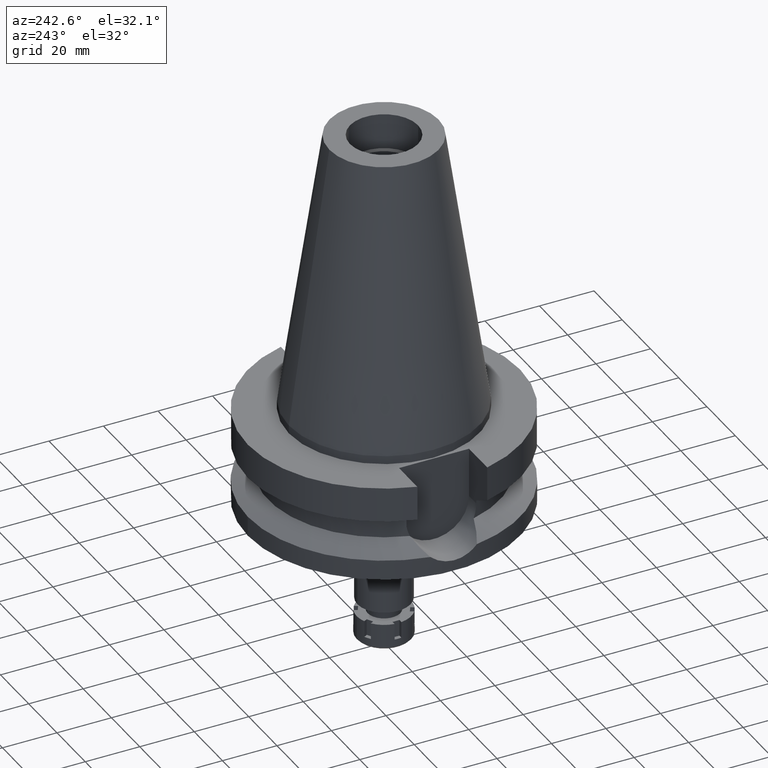
[diagram: clean part render]
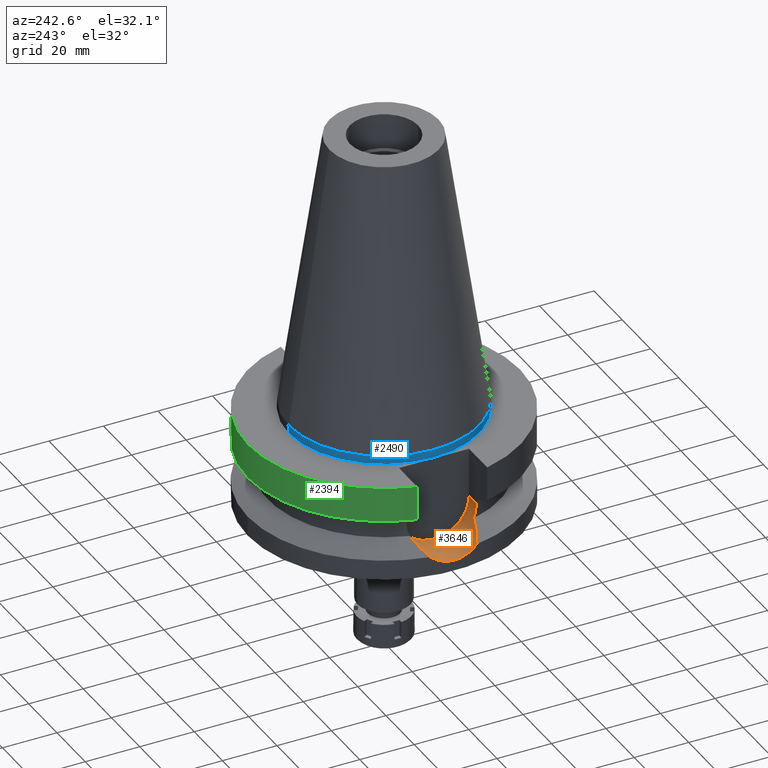
[diagram: same view with three faces highlighted in distinct colors, each labeled with its STEP entity id]
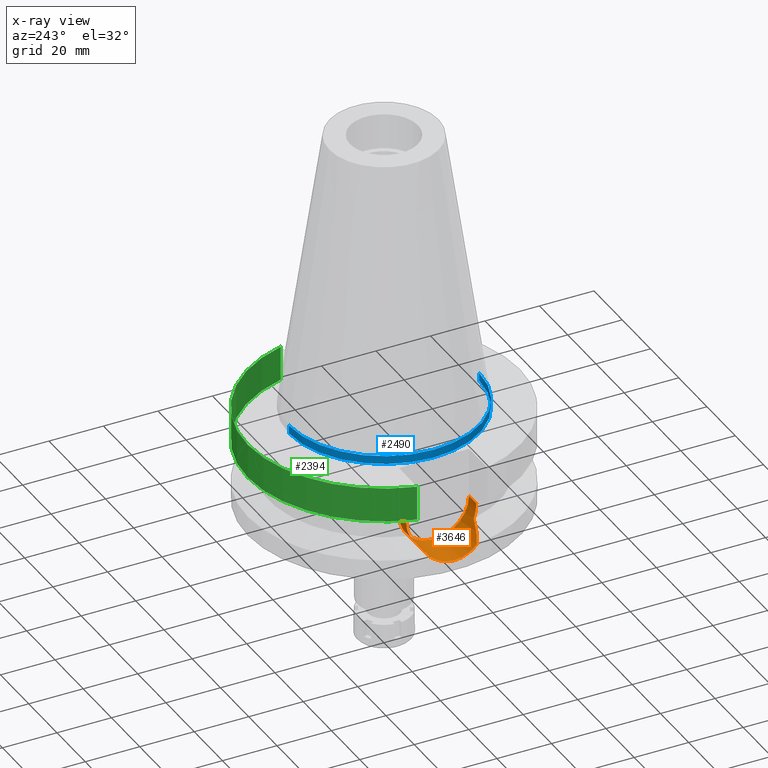
[diagram: x-ray of the same camera — body ghosted, the three highlighted faces saturated]
A machine part, auxiliary view with three faces highlighted in distinct colors.
The next image is the same camera in x-ray (body ghosted, the three faces saturated) — at least one of them is partly hidden behind the body in this view.
Their STEP definitions:

[orange] entity #3646 — the highlighted cylindrical surface (partial cylindrical patch) has radius 12.85 mm, axis along (-1, 0, 0).
#7 = ORIENTED_EDGE ( 'NONE', *, *, #560, .T. ) ;
#11 = CARTESIAN_POINT ( 'NONE',  ( -49.78024957252048921, 4.682602905365143897, -33.11659475759515914 ) ) ;
#47 = CARTESIAN_POINT ( 'NONE',  ( -49.55515418396026917, -6.654861456612751525, -32.14251385466569388 ) ) ;
#64 = CARTESIAN_POINT ( 'NONE',  ( -49.79691665736698525, -4.501773781372750527, -33.18568231504254840 ) ) ;
#84 = CARTESIAN_POINT ( 'NONE',  ( -49.61115140423147096, -6.223964729668114870, -32.39254390111983639 ) ) ;
#148 = CARTESIAN_POINT ( 'NONE',  ( -40.59544671389547688, 12.58032818125417052, -23.76890350620602987 ) ) ;
#150 = CARTESIAN_POINT ( 'NONE',  ( -45.28022631702651069, 10.40516266909225784, -28.69344492169560112 ) ) ;
#168 = CARTESIAN_POINT ( 'NONE',  ( -40.79434743164176780, -11.92110232362471223, -25.97065181136023071 ) ) ;
#200 = CARTESIAN_POINT ( 'NONE',  ( -48.08674290333145507, -9.197699470194816485, -30.13506513747411120 ) ) ;
#203 = CARTESIAN_POINT ( 'NONE',  ( -40.51083188481999287, -12.84999999999998366, -22.03308001794184179 ) ) ;
#212 = CARTESIAN_POINT ( 'NONE',  ( -35.39999999999999858, 12.84999999999999964, -21.14999999999999858 ) ) ;
#214 = CARTESIAN_POINT ( 'NONE',  ( -40.63719938804877074, -12.44499676301191826, -24.35261212848407908 ) ) ;
#230 = CARTESIAN_POINT ( 'NONE',  ( -45.65548656110691894, -10.26045505715678630, -28.88638470194267782 ) ) ;
#281 = CARTESIAN_POINT ( 'NONE',  ( -45.49443635848218292, -10.32217102536703557, -28.80354912394240685 ) ) ;
#297 = CARTESIAN_POINT ( 'NONE',  ( -49.37893249928544748, 7.861649084721365810, -31.32227597610346592 ) ) ;
#307 = CARTESIAN_POINT ( 'NONE',  ( -49.75846009006448156, -4.919875096651708191, -33.02628834701815919 ) ) ;
#325 = CARTESIAN_POINT ( 'NONE',  ( -49.55886472127197351, -6.627183405182607068, -32.15923396749315799 ) ) ;
#336 = CARTESIAN_POINT ( 'NONE',  ( -49.54916658599071866, 6.699295305335199124, -32.11552208864485181 ) ) ;
#345 = DIRECTION ( 'NONE',  ( 1.000000000000000000, 0.0000000000000000000, 0.0000000000000000000 ) ) ;
#349 = CARTESIAN_POINT ( 'NONE',  ( -49.97921232366403643, 1.472283131630176101, -33.92105330253033912 ) ) ;
#383 = VERTEX_POINT ( 'NONE', #2270 ) ;
#387 = CARTESIAN_POINT ( 'NONE',  ( -49.48034313897580461, -7.211008700865867205, -31.80506207765757054 ) ) ;
#427 = ORIENTED_EDGE ( 'NONE', *, *, #2213, .F. ) ;
#436 = CARTESIAN_POINT ( 'NONE',  ( -44.17998269318508164, 10.79320659599376064, -28.12725308174869809 ) ) ;
#486 = CARTESIAN_POINT ( 'NONE',  ( -48.69701432320685797, -8.880565581035746447, -30.44770058621088182 ) ) ;
#499 = CARTESIAN_POINT ( 'NONE',  ( -40.65435955981701710, 12.39001970624505411, -24.66361747048290098 ) ) ;
#509 = CARTESIAN_POINT ( 'NONE',  ( -44.02858050453298233, -10.87237400649603991, -28.04947220502536354 ) ) ;
#560 = EDGE_CURVE ( 'NONE', #923, #2223, #625, .T. ) ;
#562 = CARTESIAN_POINT ( 'NONE',  ( -49.32374122224086932, 8.203452260525248008, -31.05198044048908201 ) ) ;
#581 = CARTESIAN_POINT ( 'NONE',  ( -49.64903245710186042, 5.923660224752094194, -32.55987247467890455 ) ) ;
#591 = CARTESIAN_POINT ( 'NONE',  ( -49.98153239810303461, -1.536309943181190407, -33.93135900365250279 ) ) ;
#603 = ORIENTED_EDGE ( 'NONE', *, *, #1925, .T. ) ;
#613 = B_SPLINE_CURVE_WITH_KNOTS ( 'NONE', 3,
 ( #3041, #486, #200, #2687, #1337, #2400, #2115, #230, #281, #2258, #1368, #2190, #3380, #509, #3651, #1658 ),
 .UNSPECIFIED., .F., .F.,
 ( 4, 2, 2, 1, 1, 1, 1, 2, 2, 4 ),
 ( 0.0000000000000000000, 0.2499999999999930056, 0.3749999999999895084, 0.4374999999999872324, 0.4687499999999849010, 0.4843749999999835132, 0.4921874999999839018, 0.4960937499999851230, 0.4999999999999863443, 1.000000000000000000 ),
 .UNSPECIFIED. ) ;
#619 = ORIENTED_EDGE ( 'NONE', *, *, #1608, .T. ) ;
#625 = B_SPLINE_CURVE_WITH_KNOTS ( 'NONE', 3,
 ( #3120, #562, #297, #1984, #3173, #1724, #2835, #1142, #336, #2313, #1472, #2621, #2273, #3411, #581, #858, #3135, #1708, #2855, #11, #2289, #3428, #878, #3451, #2023, #1167, #2903, #349, #2647, #3476, #3442, #2341, #2359, #650, #925, #1484, #591, #1207, #2053, #3146, #1251, #1499, #2863, #64, #1992, #2665, #1734, #307, #2033, #3182, #1441, #84, #1779, #1460, #869, #325, #2608, #47, #890, #387, #1718, #3203 ),
 .UNSPECIFIED., .F., .F.,
 ( 4, 2, 2, 1, 1, 1, 1, 2, 2, 2, 2, 1, 1, 1, 2, 2, 2, 2, 1, 1, 1, 2, 2, 2, 2, 1, 1, 1, 1, 2, 2, 2, 2, 1, 1, 1, 1, 2, 2, 4 ),
 ( 0.0000000000000000000, 0.06249999999998098743, 0.09374999999997178646, 0.1093749999999669292, 0.1171874999999645839, 0.1210937499999636818, 0.1230468749999632239, 0.1240234374999630573, 0.1249999999999629186, 0.1874999999999583389, 0.2187499999999560352, 0.2343749999999547862, 0.2421874999999540090, 0.2460937499999536204, 0.2480468749999534539, 0.2499999999999533151, 0.3749999999999587552, 0.4374999999999614753, 0.4687499999999628075, 0.4843749999999634737, 0.4921874999999637512, 0.4960937499999638622, 0.4999999999999640288, 0.6249999999999688027, 0.6874999999999712452, 0.7187499999999725775, 0.7343749999999729106, 0.7421874999999731326, 0.7460937499999731326, 0.7480468749999730216, 0.7499999999999730216, 0.8124999999999784617, 0.8437499999999811262, 0.8593749999999822364, 0.8671874999999827915, 0.8710937499999830136, 0.8730468749999831246, 0.8740234374999831246, 0.8749999999999831246, 1.000000000000000000 ),
 .UNSPECIFIED. ) ;
#650 = CARTESIAN_POINT ( 'NONE',  ( -49.99991319832171399, 0.01136593545205097540, -34.00001610124989071 ) ) ;
#704 = B_SPLINE_CURVE_WITH_KNOTS ( 'NONE', 3,
 ( #1059, #2192, #2157, #782, #1562, #2705, #3315, #1894, #746, #148, #1659, #499, #1369, #1076 ),
 .UNSPECIFIED., .F., .F.,
 ( 4, 2, 2, 1, 1, 2, 2, 4 ),
 ( 0.0000000000000000000, 0.2500000000000000000, 0.3750000000000008327, 0.4375000000000012212, 0.4687500000000014988, 0.4843750000000016653, 0.5000000000000017764, 1.000000000000000000 ),
 .UNSPECIFIED. ) ;
#708 = CARTESIAN_POINT ( 'NONE',  ( -49.26250064874000145, -8.556052234130000045, -30.73730776426999967 ) ) ;
#746 = CARTESIAN_POINT ( 'NONE',  ( -40.59188398425018818, 12.59182459259059073, -23.71305796897122775 ) ) ;
#748 = CARTESIAN_POINT ( 'NONE',  ( -40.62482961095667378, -12.48525133053585989, -24.19329755006799232 ) ) ;
#782 = CARTESIAN_POINT ( 'NONE',  ( -40.54025313608426728, 12.75731810731581461, -22.70684014861738120 ) ) ;
#783 = CARTESIAN_POINT ( 'NONE',  ( -40.74530522851353709, -12.08734613714420547, -25.53455770065794539 ) ) ;
#817 = EDGE_LOOP ( 'NONE', ( #2588, #427, #603, #3164, #1162, #619, #7, #3518 ) ) ;
#841 = EDGE_CURVE ( 'NONE', #2223, #383, #613, .T. ) ;
#858 = CARTESIAN_POINT ( 'NONE',  ( -49.70819606407139446, 5.395925772571422030, -32.81381563398468160 ) ) ;
#869 = CARTESIAN_POINT ( 'NONE',  ( -49.56403511907249992, -6.588443188291877028, -32.18250114695492670 ) ) ;
#878 = CARTESIAN_POINT ( 'NONE',  ( -49.79207077459503950, 4.554957529583892217, -33.16561446373125221 ) ) ;
#890 = CARTESIAN_POINT ( 'NONE',  ( -49.55423850347690973, -6.661675813695715043, -32.13838478411036448 ) ) ;
#923 = VERTEX_POINT ( 'NONE', #2526 ) ;
#925 = CARTESIAN_POINT ( 'NONE',  ( -49.99991212798492057, -0.01359305581810668628, -34.00001368996090889 ) ) ;
#1019 = VERTEX_POINT ( 'NONE', #3413 ) ;
#1025 = CYLINDRICAL_SURFACE ( 'NONE', #2833, 12.85000000000000320 ) ;
#1059 = CARTESIAN_POINT ( 'NONE',  ( -40.51083188481999997, 12.84999999999999964, -21.14999999999999858 ) ) ;
#1060 = CARTESIAN_POINT ( 'NONE',  ( -40.68244601107635106, -12.29666625011163994, -24.88710380518771359 ) ) ;
#1074 = CARTESIAN_POINT ( 'NONE',  ( -35.39999999999999858, -12.84999999999999964, -21.14999999999999858 ) ) ;
#1076 = CARTESIAN_POINT ( 'NONE',  ( -40.85052569294000335, 11.72538061688000077, -26.40718074535000426 ) ) ;
#1142 = CARTESIAN_POINT ( 'NONE',  ( -49.54081522926169612, 6.760831091631374967, -32.07779346169777313 ) ) ;
#1162 = ORIENTED_EDGE ( 'NONE', *, *, #3338, .T. ) ;
#1167 = CARTESIAN_POINT ( 'NONE',  ( -49.91494156087060219, 3.003678811150799710, -33.66822178003757671 ) ) ;
#1173 = EDGE_CURVE ( 'NONE', #1019, #3355, #1642, .T. ) ;
#1207 = CARTESIAN_POINT ( 'NONE',  ( -49.92889851897064801, -2.680302570110720595, -33.72333287907783017 ) ) ;
#1251 = CARTESIAN_POINT ( 'NONE',  ( -49.84651032207553101, -3.920896850951880452, -33.39006912574158292 ) ) ;
#1313 = CARTESIAN_POINT ( 'NONE',  ( -40.85052569294000335, -11.72538061688000077, -26.40718074535000426 ) ) ;
#1337 = CARTESIAN_POINT ( 'NONE',  ( -46.76543360131057625, -9.806707780502058824, -29.45691703803068862 ) ) ;
#1357 = B_SPLINE_CURVE_WITH_KNOTS ( 'NONE', 3,
 ( #1313, #168, #783, #1060, #3301, #214, #748, #1565, #1896, #2763, #1878, #3317, #203, #2480 ),
 .UNSPECIFIED., .F., .F.,
 ( 4, 2, 2, 1, 1, 2, 2, 4 ),
 ( 0.0000000000000000000, 0.2499999999999899525, 0.3749999999999840683, 0.4374999999999820144, 0.4687499999999810152, 0.4843749999999805156, 0.4999999999999800160, 1.000000000000000000 ),
 .UNSPECIFIED. ) ;
#1368 = CARTESIAN_POINT ( 'NONE',  ( -45.37864606306082749, -10.36599804605942232, -28.74398704917282288 ) ) ;
#1369 = CARTESIAN_POINT ( 'NONE',  ( -40.73816957792608662, 12.11682261037261377, -25.53412604446632628 ) ) ;
#1404 = DIRECTION ( 'NONE',  ( 1.000000000000000000, 3.301887120261000215E-14, -2.711023109266999928E-14 ) ) ;
#1441 = CARTESIAN_POINT ( 'NONE',  ( -49.64375670555803310, -5.959977035439905535, -32.53601313173613363 ) ) ;
#1453 = AXIS2_PLACEMENT_3D ( 'NONE', #1777, #345, #3226 ) ;
#1460 = CARTESIAN_POINT ( 'NONE',  ( -49.57428995784106007, -6.510997233063724465, -32.22853959657702205 ) ) ;
#1472 = CARTESIAN_POINT ( 'NONE',  ( -49.55502993614496177, 6.655769661175015450, -32.14196323983808412 ) ) ;
#1484 = CARTESIAN_POINT ( 'NONE',  ( -49.99934971133907169, -0.7780250448240143557, -33.99782700923816492 ) ) ;
#1499 = CARTESIAN_POINT ( 'NONE',  ( -49.81887950449355174, -4.253215501582282343, -33.27643327975498977 ) ) ;
#1539 = CARTESIAN_POINT ( 'NONE',  ( -35.39999999999999858, -12.84999999999999964, -21.14999999999999858 ) ) ;
#1562 = CARTESIAN_POINT ( 'NONE',  ( -40.54944727710434904, 12.72806419699610814, -22.93049076238056827 ) ) ;
#1565 = CARTESIAN_POINT ( 'NONE',  ( -40.61156896389280035, -12.52821669071495236, -24.00856318994553362 ) ) ;
#1574 = CARTESIAN_POINT ( 'NONE',  ( -35.39999999999999858, 1.497743035356999952E-14, -21.14999999999999858 ) ) ;
#1608 = EDGE_CURVE ( 'NONE', #2328, #923, #2868, .T. ) ;
#1642 = LINE ( 'NONE', #3642, #2445 ) ;
#1654 = EDGE_CURVE ( 'NONE', #383, #2106, #1357, .T. ) ;
#1658 = CARTESIAN_POINT ( 'NONE',  ( -40.85052569294000335, -11.72538061688000077, -26.40718074535000426 ) ) ;
#1659 = CARTESIAN_POINT ( 'NONE',  ( -40.59736864107517107, 12.57412283048128643, -23.79851909554893652 ) ) ;
#1708 = CARTESIAN_POINT ( 'NONE',  ( -49.75323403136624734, 4.961523143211026721, -33.00388751686863031 ) ) ;
#1718 = CARTESIAN_POINT ( 'NONE',  ( -49.38328813149115604, -7.860603762716605658, -31.35795055512084062 ) ) ;
#1724 = CARTESIAN_POINT ( 'NONE',  ( -49.50802364944699008, 6.996643991144773977, -31.92857083739664859 ) ) ;
#1734 = CARTESIAN_POINT ( 'NONE',  ( -49.79032517722864526, -4.573999506076196653, -33.15837850807866971 ) ) ;
#1777 = CARTESIAN_POINT ( 'NONE',  ( -35.39999999999999858, 1.497743035356999952E-14, -21.14999999999999858 ) ) ;
#1779 = CARTESIAN_POINT ( 'NONE',  ( -49.59445580804820963, -6.356262091025262961, -32.31864549463027458 ) ) ;
#1878 = CARTESIAN_POINT ( 'NONE',  ( -40.60092750940730610, -12.56262654778359789, -23.85254111937859278 ) ) ;
#1894 = CARTESIAN_POINT ( 'NONE',  ( -40.58662608485432344, 12.60878154790449557, -23.62927549514129311 ) ) ;
#1896 = CARTESIAN_POINT ( 'NONE',  ( -40.60613670648189100, -12.54578755583307270, -23.92964714799525083 ) ) ;
#1925 = EDGE_CURVE ( 'NONE', #2358, #3355, #3481, .T. ) ;
#1984 = CARTESIAN_POINT ( 'NONE',  ( -49.45264547016790857, 7.378484261734880256, -31.67235839608492753 ) ) ;
#1992 = CARTESIAN_POINT ( 'NONE',  ( -49.79369055535320143, -4.537227758215052198, -33.17232190022467364 ) ) ;
#2023 = CARTESIAN_POINT ( 'NONE',  ( -49.86319177403685643, 3.774326660547631107, -33.45998250810849584 ) ) ;
#2033 = CARTESIAN_POINT ( 'NONE',  ( -49.72336919272227362, -5.262903667389427831, -32.87919076962494813 ) ) ;
#2053 = CARTESIAN_POINT ( 'NONE',  ( -49.90703590771347109, -3.062680104865699970, -33.63596624744679531 ) ) ;
#2106 = VERTEX_POINT ( 'NONE', #2444 ) ;
#2115 = CARTESIAN_POINT ( 'NONE',  ( -45.97391318908609037, -10.13580093840695184, -29.05013618176491619 ) ) ;
#2157 = CARTESIAN_POINT ( 'NONE',  ( -40.51818719763605969, 12.82722225432294394, -22.03686830847679445 ) ) ;
#2174 = CARTESIAN_POINT ( 'NONE',  ( -46.99157795686057426, 9.743865821481804801, -29.57348634258837095 ) ) ;
#2190 = CARTESIAN_POINT ( 'NONE',  ( -45.35542021403881563, -10.37474025335260919, -28.73203926851988754 ) ) ;
#2192 = CARTESIAN_POINT ( 'NONE',  ( -40.51083188481999287, 12.85000000000001741, -21.59154171183339699 ) ) ;
#2213 = EDGE_CURVE ( 'NONE', #2358, #2106, #3580, .T. ) ;
#2223 = VERTEX_POINT ( 'NONE', #708 ) ;
#2258 = CARTESIAN_POINT ( 'NONE',  ( -45.41345203501103356, -10.35287347729750884, -28.76189161095661007 ) ) ;
#2270 = CARTESIAN_POINT ( 'NONE',  ( -40.85052569294000335, -11.72538061688000077, -26.40718074535000426 ) ) ;
#2273 = CARTESIAN_POINT ( 'NONE',  ( -49.55660296224365879, 6.644051108330226718, -32.14905121252602527 ) ) ;
#2289 = CARTESIAN_POINT ( 'NONE',  ( -49.78718657740765252, 4.608071001974852088, -33.14537780171632164 ) ) ;
#2313 = CARTESIAN_POINT ( 'NONE',  ( -49.55328023543650318, 6.668788011673837168, -32.13407698013666902 ) ) ;
#2328 = VERTEX_POINT ( 'NONE', #3607 ) ;
#2341 = CARTESIAN_POINT ( 'NONE',  ( -49.99977861994412365, 0.1279244560840460676, -33.99951148631555498 ) ) ;
#2358 = VERTEX_POINT ( 'NONE', #1074 ) ;
#2359 = CARTESIAN_POINT ( 'NONE',  ( -49.99987979864303611, 0.05796992317785085169, -33.99989036820458921 ) ) ;
#2400 = CARTESIAN_POINT ( 'NONE',  ( -46.24055239489063496, -10.02693483807443364, -29.18719788205006083 ) ) ;
#2419 = DIRECTION ( 'NONE',  ( -1.000000000000000000, 3.440913946376999995E-14, 0.0000000000000000000 ) ) ;
#2444 = CARTESIAN_POINT ( 'NONE',  ( -40.51083188481999997, -12.84999999999999964, -21.14999999999999858 ) ) ;
#2445 = VECTOR ( 'NONE', #1404, 1000.000000000000000 ) ;
#2450 = CARTESIAN_POINT ( 'NONE',  ( -49.26250064874000145, 8.556052234130000045, -30.73730776426999967 ) ) ;
#2460 = FACE_OUTER_BOUND ( 'NONE', #817, .T. ) ;
#2480 = CARTESIAN_POINT ( 'NONE',  ( -40.51083188481999997, -12.84999999999999964, -21.14999999999999858 ) ) ;
#2526 = CARTESIAN_POINT ( 'NONE',  ( -49.26250064874000145, 8.556052234130000045, -30.73730776426999967 ) ) ;
#2588 = ORIENTED_EDGE ( 'NONE', *, *, #1654, .T. ) ;
#2608 = CARTESIAN_POINT ( 'NONE',  ( -49.55663962683969714, -6.643789794545323701, -32.14920901781682971 ) ) ;
#2621 = CARTESIAN_POINT ( 'NONE',  ( -49.55619344952589245, 6.647103290323241431, -32.14720616776567397 ) ) ;
#2647 = CARTESIAN_POINT ( 'NONE',  ( -49.99187212320664742, 0.9033269226727536072, -33.96962286846665791 ) ) ;
#2654 = VECTOR ( 'NONE', #2419, 1000.000000000000000 ) ;
#2665 = CARTESIAN_POINT ( 'NONE',  ( -49.79153138711311755, -4.560858291803108422, -33.16337717898798587 ) ) ;
#2687 = CARTESIAN_POINT ( 'NONE',  ( -47.10415813200495450, -9.656564559060427655, -29.63085512692361334 ) ) ;
#2705 = CARTESIAN_POINT ( 'NONE',  ( -40.56599673094049763, 12.67509433839708954, -23.26596311456001231 ) ) ;
#2726 = CARTESIAN_POINT ( 'NONE',  ( -40.85052569294000335, 11.72538061688000077, -26.40718074535000426 ) ) ;
#2763 = CARTESIAN_POINT ( 'NONE',  ( -40.60257095199570898, -12.55731571366199795, -23.87709474182167924 ) ) ;
#2774 = CARTESIAN_POINT ( 'NONE',  ( -48.20491262477614214, 9.162965989250889010, -30.19567648277770999 ) ) ;
#2833 = AXIS2_PLACEMENT_3D ( 'NONE', #1574, #2963, #3578 ) ;
#2835 = CARTESIAN_POINT ( 'NONE',  ( -49.52361628445370201, 6.885959953150362800, -31.99982566525154937 ) ) ;
#2855 = CARTESIAN_POINT ( 'NONE',  ( -49.76602569630560424, 4.832263764214886237, -33.05741896587861106 ) ) ;
#2863 = CARTESIAN_POINT ( 'NONE',  ( -49.80435567630823357, -4.418991950003054114, -33.21646025970977689 ) ) ;
#2868 = B_SPLINE_CURVE_WITH_KNOTS ( 'NONE', 3,
 ( #2726, #2994, #3010, #3268, #436, #3541, #150, #2174, #2774, #2450 ),
 .UNSPECIFIED., .F., .F.,
 ( 4, 2, 2, 2, 4 ),
 ( 0.0000000000000000000, 0.2500000000000009437, 0.3750000000000004996, 0.5000000000000001110, 1.000000000000000000 ),
 .UNSPECIFIED. ) ;
#2903 = CARTESIAN_POINT ( 'NONE',  ( -49.96641370053851716, 1.854335669822220423, -33.87145058384915330 ) ) ;
#2963 = DIRECTION ( 'NONE',  ( -1.000000000000000000, 0.0000000000000000000, 0.0000000000000000000 ) ) ;
#2994 = CARTESIAN_POINT ( 'NONE',  ( -41.75359457201036406, 11.51566234115254339, -26.87492700029918780 ) ) ;
#3010 = CARTESIAN_POINT ( 'NONE',  ( -42.60279325754998325, 11.28520460329424857, -27.31397702932645899 ) ) ;
#3041 = CARTESIAN_POINT ( 'NONE',  ( -49.26250064874000145, -8.556052234130000045, -30.73730776426999967 ) ) ;
#3120 = CARTESIAN_POINT ( 'NONE',  ( -49.26250064874000145, 8.556052234130000045, -30.73730776426999967 ) ) ;
#3135 = CARTESIAN_POINT ( 'NONE',  ( -49.72685100676631009, 5.221220377074850205, -32.89294692259100117 ) ) ;
#3146 = CARTESIAN_POINT ( 'NONE',  ( -49.86776501350811230, -3.635030136562376946, -33.47672996157389491 ) ) ;
#3164 = ORIENTED_EDGE ( 'NONE', *, *, #1173, .F. ) ;
#3173 = CARTESIAN_POINT ( 'NONE',  ( -49.47570413634797148, 7.222306619794755633, -31.77982844791337769 ) ) ;
#3182 = CARTESIAN_POINT ( 'NONE',  ( -49.66444571838906796, -5.784797250924827772, -32.62588835543075305 ) ) ;
#3203 = CARTESIAN_POINT ( 'NONE',  ( -49.26250064874000145, -8.556052234130000045, -30.73730776426999967 ) ) ;
#3226 = DIRECTION ( 'NONE',  ( 0.0000000000000000000, -1.000000000000000000, 1.133982661338924476E-14 ) ) ;
#3268 = CARTESIAN_POINT ( 'NONE',  ( -43.79578599556329976, 10.91880345032714139, -27.92932298627185261 ) ) ;
#3301 = CARTESIAN_POINT ( 'NONE',  ( -40.66327695313980684, -12.35977177933931870, -24.67238797837627828 ) ) ;
#3315 = CARTESIAN_POINT ( 'NONE',  ( -40.57496101843508995, 12.64633755876222132, -23.43369807929340709 ) ) ;
#3317 = CARTESIAN_POINT ( 'NONE',  ( -40.54025086427707691, -12.75862911298349900, -22.93149008171447534 ) ) ;
#3338 = EDGE_CURVE ( 'NONE', #1019, #2328, #704, .T. ) ;
#3355 = VERTEX_POINT ( 'NONE', #212 ) ;
#3380 = CARTESIAN_POINT ( 'NONE',  ( -45.34234579045671154, -10.37965163302804150, -28.72531345977967376 ) ) ;
#3411 = CARTESIAN_POINT ( 'NONE',  ( -49.60532501394237670, 6.280351743786779295, -32.36849389332115123 ) ) ;
#3413 = CARTESIAN_POINT ( 'NONE',  ( -40.51083188481999997, 12.84999999999999964, -21.14999999999999858 ) ) ;
#3428 = CARTESIAN_POINT ( 'NONE',  ( -49.79012209381210852, 4.576194113253274409, -33.15754248275504068 ) ) ;
#3442 = CARTESIAN_POINT ( 'NONE',  ( -49.99918498204763040, 0.2914842725274878754, -33.99728988284292086 ) ) ;
#3451 = CARTESIAN_POINT ( 'NONE',  ( -49.79292594743096600, 4.545608915696885077, -33.16915556117294983 ) ) ;
#3476 = CARTESIAN_POINT ( 'NONE',  ( -49.99656748919150573, 0.6198751114941767337, -33.98745238092604382 ) ) ;
#3481 = CIRCLE ( 'NONE', #1453, 12.84999999999999964 ) ;
#3518 = ORIENTED_EDGE ( 'NONE', *, *, #841, .T. ) ;
#3541 = CARTESIAN_POINT ( 'NONE',  ( -44.92144099166321070, 10.53668053155950446, -28.50892197039959086 ) ) ;
#3578 = DIRECTION ( 'NONE',  ( 0.0000000000000000000, 0.0000000000000000000, -1.000000000000000000 ) ) ;
#3580 = LINE ( 'NONE', #1539, #2654 ) ;
#3607 = CARTESIAN_POINT ( 'NONE',  ( -40.85052569294000335, 11.72538061688000077, -26.40718074535000426 ) ) ;
#3642 = CARTESIAN_POINT ( 'NONE',  ( -40.51083188481999997, 12.84999999999999964, -21.14999999999999858 ) ) ;
#3646 = ADVANCED_FACE ( 'NONE', ( #2460 ), #1025, .F. ) ;
#3651 = CARTESIAN_POINT ( 'NONE',  ( -42.53470188103498373, -11.33426701039878104, -27.27950302654550896 ) ) ;

[blue] entity #2490 — the highlighted cylindrical surface (partial cylindrical patch) has radius 34.925 mm, axis along (0, 0, -1).
#20 = CARTESIAN_POINT ( 'NONE',  ( 0.0000000000000000000, -34.92499999999999716, 4.902744876745000264E-13 ) ) ;
#40 = VERTEX_POINT ( 'NONE', #3235 ) ;
#89 = VECTOR ( 'NONE', #185, 1000.000000000000000 ) ;
#151 = CARTESIAN_POINT ( 'NONE',  ( 0.0000000000000000000, -34.92499999999999716, 4.902744876745000264E-13 ) ) ;
#185 = DIRECTION ( 'NONE',  ( 0.0000000000000000000, -2.131628207279999907E-13, -1.000000000000000000 ) ) ;
#316 = CYLINDRICAL_SURFACE ( 'NONE', #1294, 34.92499999999999716 ) ;
#415 = DIRECTION ( 'NONE',  ( 0.0000000000000000000, 0.0000000000000000000, 1.000000000000000000 ) ) ;
#536 = DIRECTION ( 'NONE',  ( 0.0000000000000000000, 0.0000000000000000000, -1.000000000000000000 ) ) ;
#575 = EDGE_CURVE ( 'NONE', #2747, #40, #2589, .T. ) ;
#654 = ORIENTED_EDGE ( 'NONE', *, *, #1739, .T. ) ;
#771 = ORIENTED_EDGE ( 'NONE', *, *, #2172, .T. ) ;
#813 = EDGE_LOOP ( 'NONE', ( #1264, #911, #654, #771 ) ) ;
#835 = CARTESIAN_POINT ( 'NONE',  ( 0.0000000000000000000, 1.847992019912999597E-14, 3.979039320256999774E-13 ) ) ;
#911 = ORIENTED_EDGE ( 'NONE', *, *, #575, .F. ) ;
#989 = CARTESIAN_POINT ( 'NONE',  ( 0.0000000000000000000, 2.585719251719999535E-14, -3.000000000000000000 ) ) ;
#1131 = CARTESIAN_POINT ( 'NONE',  ( 0.0000000000000000000, 34.92499999999999716, -3.000000000000000000 ) ) ;
#1192 = VERTEX_POINT ( 'NONE', #1131 ) ;
#1264 = ORIENTED_EDGE ( 'NONE', *, *, #2694, .T. ) ;
#1286 = CARTESIAN_POINT ( 'NONE',  ( 0.0000000000000000000, 34.92499999999999716, 4.902744876745000264E-13 ) ) ;
#1294 = AXIS2_PLACEMENT_3D ( 'NONE', #1450, #2598, #2024 ) ;
#1316 = CIRCLE ( 'NONE', #3335, 34.92499999999999716 ) ;
#1450 = CARTESIAN_POINT ( 'NONE',  ( 0.0000000000000000000, 2.585719251719999535E-14, 111.1400000000000006 ) ) ;
#1474 = FACE_OUTER_BOUND ( 'NONE', #813, .T. ) ;
#1739 = EDGE_CURVE ( 'NONE', #2747, #2505, #1316, .T. ) ;
#1930 = CIRCLE ( 'NONE', #2827, 34.92499999999999716 ) ;
#2016 = DIRECTION ( 'NONE',  ( 0.0000000000000000000, 2.107943449421000052E-13, -1.000000000000000000 ) ) ;
#2024 = DIRECTION ( 'NONE',  ( 0.0000000000000000000, -1.000000000000000000, 0.0000000000000000000 ) ) ;
#2172 = EDGE_CURVE ( 'NONE', #2505, #1192, #2721, .T. ) ;
#2438 = CARTESIAN_POINT ( 'NONE',  ( 0.0000000000000000000, 34.92499999999999716, 4.902744876745000264E-13 ) ) ;
#2490 = ADVANCED_FACE ( 'NONE', ( #1474 ), #316, .T. ) ;
#2505 = VERTEX_POINT ( 'NONE', #2438 ) ;
#2589 = LINE ( 'NONE', #20, #3505 ) ;
#2598 = DIRECTION ( 'NONE',  ( 0.0000000000000000000, 0.0000000000000000000, -1.000000000000000000 ) ) ;
#2694 = EDGE_CURVE ( 'NONE', #1192, #40, #1930, .T. ) ;
#2721 = LINE ( 'NONE', #1286, #89 ) ;
#2727 = DIRECTION ( 'NONE',  ( 0.0000000000000000000, 1.000000000000000000, 0.0000000000000000000 ) ) ;
#2747 = VERTEX_POINT ( 'NONE', #151 ) ;
#2827 = AXIS2_PLACEMENT_3D ( 'NONE', #989, #415, #2727 ) ;
#3235 = CARTESIAN_POINT ( 'NONE',  ( 0.0000000000000000000, -34.92499999999999716, -3.000000000000000000 ) ) ;
#3335 = AXIS2_PLACEMENT_3D ( 'NONE', #835, #536, #3614 ) ;
#3505 = VECTOR ( 'NONE', #2016, 1000.000000000000000 ) ;
#3614 = DIRECTION ( 'NONE',  ( 0.0000000000000000000, -1.000000000000000000, 0.0000000000000000000 ) ) ;

[green] entity #2394 — the highlighted cylindrical surface (partial cylindrical patch) has radius 50 mm, axis along (0, 0, -1).
#98 = CIRCLE ( 'NONE', #1466, 50.00000000000000000 ) ;
#362 = CARTESIAN_POINT ( 'NONE',  ( 0.0000000000000000000, 2.585719251719999535E-14, -3.000000000000000000 ) ) ;
#547 = FACE_OUTER_BOUND ( 'NONE', #2249, .T. ) ;
#861 = LINE ( 'NONE', #2567, #2620 ) ;
#943 = ORIENTED_EDGE ( 'NONE', *, *, #1563, .T. ) ;
#980 = VERTEX_POINT ( 'NONE', #2838 ) ;
#1003 = DIRECTION ( 'NONE',  ( 0.0000000000000000000, 1.000000000000000000, 0.0000000000000000000 ) ) ;
#1004 = LINE ( 'NONE', #2966, #2416 ) ;
#1023 = EDGE_CURVE ( 'NONE', #1733, #2677, #861, .T. ) ;
#1158 = DIRECTION ( 'NONE',  ( 8.064934476421599511E-08, -3.032700232818849606E-07, 0.9999999999999508171 ) ) ;
#1161 = DIRECTION ( 'NONE',  ( 0.0000000000000000000, 0.0000000000000000000, -1.000000000000000000 ) ) ;
#1221 = DIRECTION ( 'NONE',  ( 0.0000000000000000000, 1.000000000000000000, 0.0000000000000000000 ) ) ;
#1379 = CARTESIAN_POINT ( 'NONE',  ( 0.0000000000000000000, 2.585719251719999535E-14, 111.1400000000000006 ) ) ;
#1418 = CIRCLE ( 'NONE', #2198, 50.00000000000000000 ) ;
#1466 = AXIS2_PLACEMENT_3D ( 'NONE', #362, #1161, #1221 ) ;
#1563 = EDGE_CURVE ( 'NONE', #1733, #2283, #1418, .T. ) ;
#1616 = CARTESIAN_POINT ( 'NONE',  ( 48.32056913268999665, 12.85000384020000119, -15.66265783552000102 ) ) ;
#1674 = CYLINDRICAL_SURFACE ( 'NONE', #3549, 50.00000000000000000 ) ;
#1733 = VERTEX_POINT ( 'NONE', #1616 ) ;
#2153 = EDGE_CURVE ( 'NONE', #980, #2283, #1004, .T. ) ;
#2198 = AXIS2_PLACEMENT_3D ( 'NONE', #2418, #2965, #1003 ) ;
#2249 = EDGE_LOOP ( 'NONE', ( #2927, #3022, #3307, #943 ) ) ;
#2283 = VERTEX_POINT ( 'NONE', #3084 ) ;
#2394 = ADVANCED_FACE ( 'NONE', ( #547 ), #1674, .T. ) ;
#2416 = VECTOR ( 'NONE', #3535, 1000.000000000000114 ) ;
#2418 = CARTESIAN_POINT ( 'NONE',  ( 0.0000000000000000000, 1.006319759053999930E-14, -15.66269223573000069 ) ) ;
#2510 = DIRECTION ( 'NONE',  ( 0.0000000000000000000, 0.0000000000000000000, -1.000000000000000000 ) ) ;
#2567 = CARTESIAN_POINT ( 'NONE',  ( 48.32056913268999665, 12.85000384020000119, -15.66265783552000102 ) ) ;
#2620 = VECTOR ( 'NONE', #1158, 1000.000000000000000 ) ;
#2677 = VERTEX_POINT ( 'NONE', #3513 ) ;
#2817 = DIRECTION ( 'NONE',  ( 0.0000000000000000000, -1.000000000000000000, 0.0000000000000000000 ) ) ;
#2838 = CARTESIAN_POINT ( 'NONE',  ( -48.32057015392000210, 12.84999999999999964, -3.000000000000000000 ) ) ;
#2927 = ORIENTED_EDGE ( 'NONE', *, *, #2153, .F. ) ;
#2965 = DIRECTION ( 'NONE',  ( 0.0000000000000000000, 0.0000000000000000000, 1.000000000000000000 ) ) ;
#2966 = CARTESIAN_POINT ( 'NONE',  ( -48.32057015392000210, 12.84999999999999964, -3.000000000000000000 ) ) ;
#3022 = ORIENTED_EDGE ( 'NONE', *, *, #3494, .T. ) ;
#3084 = CARTESIAN_POINT ( 'NONE',  ( -48.32056913410000476, 12.85000383490000075, -15.66265788299999961 ) ) ;
#3307 = ORIENTED_EDGE ( 'NONE', *, *, #1023, .F. ) ;
#3494 = EDGE_CURVE ( 'NONE', #980, #2677, #98, .T. ) ;
#3513 = CARTESIAN_POINT ( 'NONE',  ( 48.32057015392000210, 12.84999999999999964, -3.000000000000000000 ) ) ;
#3535 = DIRECTION ( 'NONE',  ( 8.053802028658599694E-08, 3.028514037813849781E-07, -0.9999999999999509281 ) ) ;
#3549 = AXIS2_PLACEMENT_3D ( 'NONE', #1379, #2510, #2817 ) ;